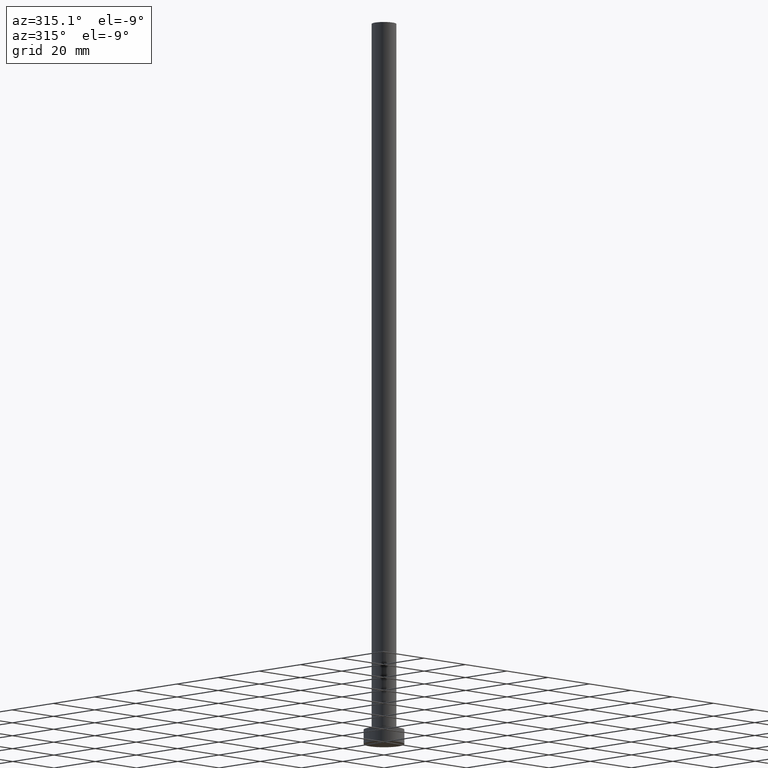
[diagram: clean part render]
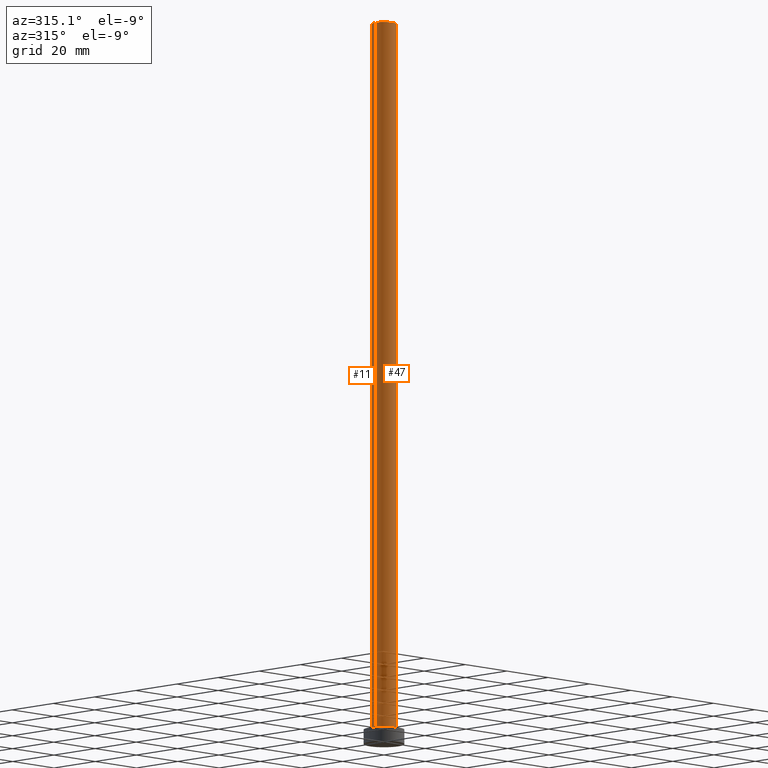
[diagram: same view with one multi-face feature highlighted, each face labeled with its STEP entity id]
A machine part, auxiliary view. The highlighted faces form ONE feature: a constant-radius fillet chain: 2 tangent blend faces with common blend radius 4.25 mm. The faces share edges in the B-rep.
Their STEP definitions:
[1] entity #11 (Cylinder):
#4 = DIRECTION ( 'NONE',  ( -0.000000000000000000, -0.000000000000000000, -1.000000000000000000 ) ) ;
#11 = ADVANCED_FACE ( 'NONE', ( #172 ), #138, .T. ) ;
#20 = DIRECTION ( 'NONE',  ( 1.000000000000000000, 0.000000000000000000, 0.000000000000000000 ) ) ;
#27 = ORIENTED_EDGE ( 'NONE', *, *, #227, .F. ) ;
#28 = CARTESIAN_POINT ( 'NONE',  ( 0.000000000000000000, 0.000000000000000000, 250.0000000000000000 ) ) ;
#30 = DIRECTION ( 'NONE',  ( -0.000000000000000000, -0.000000000000000000, -1.000000000000000000 ) ) ;
#33 = DIRECTION ( 'NONE',  ( 1.000000000000000000, 0.000000000000000000, 0.000000000000000000 ) ) ;
#34 = ORIENTED_EDGE ( 'NONE', *, *, #91, .T. ) ;
#41 = CARTESIAN_POINT ( 'NONE',  ( 0.000000000000000000, 0.000000000000000000, 250.0000000000000000 ) ) ;
#48 = AXIS2_PLACEMENT_3D ( 'NONE', #28, #201, #33 ) ;
#59 = EDGE_LOOP ( 'NONE', ( #212, #34, #175, #27 ) ) ;
#62 = DIRECTION ( 'NONE',  ( -1.000000000000000000, 0.000000000000000000, 0.000000000000000000 ) ) ;
#63 = VERTEX_POINT ( 'NONE', #68 ) ;
#67 = EDGE_CURVE ( 'NONE', #106, #126, #230, .T. ) ;
#68 = CARTESIAN_POINT ( 'NONE',  ( -4.250000000000000000, 0.000000000000000000, 5.000000000000000000 ) ) ;
#91 = EDGE_CURVE ( 'NONE', #106, #249, #161, .T. ) ;
#99 = VECTOR ( 'NONE', #150, 1000.000000000000000 ) ;
#106 = VERTEX_POINT ( 'NONE', #229 ) ;
#117 = CIRCLE ( 'NONE', #165, 4.250000000000000000 ) ;
#126 = VERTEX_POINT ( 'NONE', #187 ) ;
#138 = CYLINDRICAL_SURFACE ( 'NONE', #153, 4.250000000000000000 ) ;
#150 = DIRECTION ( 'NONE',  ( -0.000000000000000000, -0.000000000000000000, -1.000000000000000000 ) ) ;
#152 = VECTOR ( 'NONE', #30, 1000.000000000000000 ) ;
#153 = AXIS2_PLACEMENT_3D ( 'NONE', #41, #4, #62 ) ;
#161 = LINE ( 'NONE', #198, #152 ) ;
#165 = AXIS2_PLACEMENT_3D ( 'NONE', #214, #188, #20 ) ;
#171 = CARTESIAN_POINT ( 'NONE',  ( 4.250000000000000000, 5.204748896376250699E-16, 5.000000000000000000 ) ) ;
#172 = FACE_OUTER_BOUND ( 'NONE', #59, .T. ) ;
#175 = ORIENTED_EDGE ( 'NONE', *, *, #235, .T. ) ;
#187 = CARTESIAN_POINT ( 'NONE',  ( -4.250000000000000000, 0.000000000000000000, 250.0000000000000000 ) ) ;
#188 = DIRECTION ( 'NONE',  ( 0.000000000000000000, 0.000000000000000000, 1.000000000000000000 ) ) ;
#198 = CARTESIAN_POINT ( 'NONE',  ( 4.250000000000000000, 5.204748896376250699E-16, 250.0000000000000000 ) ) ;
#201 = DIRECTION ( 'NONE',  ( 0.000000000000000000, 0.000000000000000000, 1.000000000000000000 ) ) ;
#210 = LINE ( 'NONE', #251, #99 ) ;
#212 = ORIENTED_EDGE ( 'NONE', *, *, #67, .F. ) ;
#214 = CARTESIAN_POINT ( 'NONE',  ( 0.000000000000000000, 0.000000000000000000, 5.000000000000000000 ) ) ;
#227 = EDGE_CURVE ( 'NONE', #126, #63, #210, .T. ) ;
#229 = CARTESIAN_POINT ( 'NONE',  ( 4.250000000000000000, 5.204748896376250699E-16, 250.0000000000000000 ) ) ;
#230 = CIRCLE ( 'NONE', #48, 4.250000000000000000 ) ;
#235 = EDGE_CURVE ( 'NONE', #249, #63, #117, .T. ) ;
#249 = VERTEX_POINT ( 'NONE', #171 ) ;
#251 = CARTESIAN_POINT ( 'NONE',  ( -4.250000000000000000, 0.000000000000000000, 250.0000000000000000 ) ) ;
[2] entity #47 (Cylinder):
#30 = DIRECTION ( 'NONE',  ( -0.000000000000000000, -0.000000000000000000, -1.000000000000000000 ) ) ;
#43 = EDGE_CURVE ( 'NONE', #63, #249, #85, .T. ) ;
#47 = ADVANCED_FACE ( 'NONE', ( #61 ), #115, .T. ) ;
#53 = AXIS2_PLACEMENT_3D ( 'NONE', #97, #173, #100 ) ;
#61 = FACE_OUTER_BOUND ( 'NONE', #182, .T. ) ;
#63 = VERTEX_POINT ( 'NONE', #68 ) ;
#68 = CARTESIAN_POINT ( 'NONE',  ( -4.250000000000000000, 0.000000000000000000, 5.000000000000000000 ) ) ;
#69 = ORIENTED_EDGE ( 'NONE', *, *, #180, .F. ) ;
#71 = DIRECTION ( 'NONE',  ( -0.000000000000000000, -0.000000000000000000, -1.000000000000000000 ) ) ;
#72 = CARTESIAN_POINT ( 'NONE',  ( 0.000000000000000000, 0.000000000000000000, 250.0000000000000000 ) ) ;
#85 = CIRCLE ( 'NONE', #53, 4.250000000000000000 ) ;
#87 = AXIS2_PLACEMENT_3D ( 'NONE', #72, #88, #103 ) ;
#88 = DIRECTION ( 'NONE',  ( 0.000000000000000000, 0.000000000000000000, 1.000000000000000000 ) ) ;
#89 = AXIS2_PLACEMENT_3D ( 'NONE', #92, #71, #221 ) ;
#91 = EDGE_CURVE ( 'NONE', #106, #249, #161, .T. ) ;
#92 = CARTESIAN_POINT ( 'NONE',  ( 0.000000000000000000, 0.000000000000000000, 250.0000000000000000 ) ) ;
#97 = CARTESIAN_POINT ( 'NONE',  ( 0.000000000000000000, 0.000000000000000000, 5.000000000000000000 ) ) ;
#99 = VECTOR ( 'NONE', #150, 1000.000000000000000 ) ;
#100 = DIRECTION ( 'NONE',  ( 1.000000000000000000, 0.000000000000000000, 0.000000000000000000 ) ) ;
#103 = DIRECTION ( 'NONE',  ( 1.000000000000000000, 0.000000000000000000, 0.000000000000000000 ) ) ;
#106 = VERTEX_POINT ( 'NONE', #229 ) ;
#109 = ORIENTED_EDGE ( 'NONE', *, *, #91, .F. ) ;
#114 = ORIENTED_EDGE ( 'NONE', *, *, #227, .T. ) ;
#115 = CYLINDRICAL_SURFACE ( 'NONE', #89, 4.250000000000000000 ) ;
#126 = VERTEX_POINT ( 'NONE', #187 ) ;
#132 = ORIENTED_EDGE ( 'NONE', *, *, #43, .T. ) ;
#150 = DIRECTION ( 'NONE',  ( -0.000000000000000000, -0.000000000000000000, -1.000000000000000000 ) ) ;
#152 = VECTOR ( 'NONE', #30, 1000.000000000000000 ) ;
#161 = LINE ( 'NONE', #198, #152 ) ;
#171 = CARTESIAN_POINT ( 'NONE',  ( 4.250000000000000000, 5.204748896376250699E-16, 5.000000000000000000 ) ) ;
#173 = DIRECTION ( 'NONE',  ( 0.000000000000000000, 0.000000000000000000, 1.000000000000000000 ) ) ;
#180 = EDGE_CURVE ( 'NONE', #126, #106, #213, .T. ) ;
#182 = EDGE_LOOP ( 'NONE', ( #109, #69, #114, #132 ) ) ;
#187 = CARTESIAN_POINT ( 'NONE',  ( -4.250000000000000000, 0.000000000000000000, 250.0000000000000000 ) ) ;
#198 = CARTESIAN_POINT ( 'NONE',  ( 4.250000000000000000, 5.204748896376250699E-16, 250.0000000000000000 ) ) ;
#210 = LINE ( 'NONE', #251, #99 ) ;
#213 = CIRCLE ( 'NONE', #87, 4.250000000000000000 ) ;
#221 = DIRECTION ( 'NONE',  ( -1.000000000000000000, 0.000000000000000000, 0.000000000000000000 ) ) ;
#227 = EDGE_CURVE ( 'NONE', #126, #63, #210, .T. ) ;
#229 = CARTESIAN_POINT ( 'NONE',  ( 4.250000000000000000, 5.204748896376250699E-16, 250.0000000000000000 ) ) ;
#249 = VERTEX_POINT ( 'NONE', #171 ) ;
#251 = CARTESIAN_POINT ( 'NONE',  ( -4.250000000000000000, 0.000000000000000000, 250.0000000000000000 ) ) ;